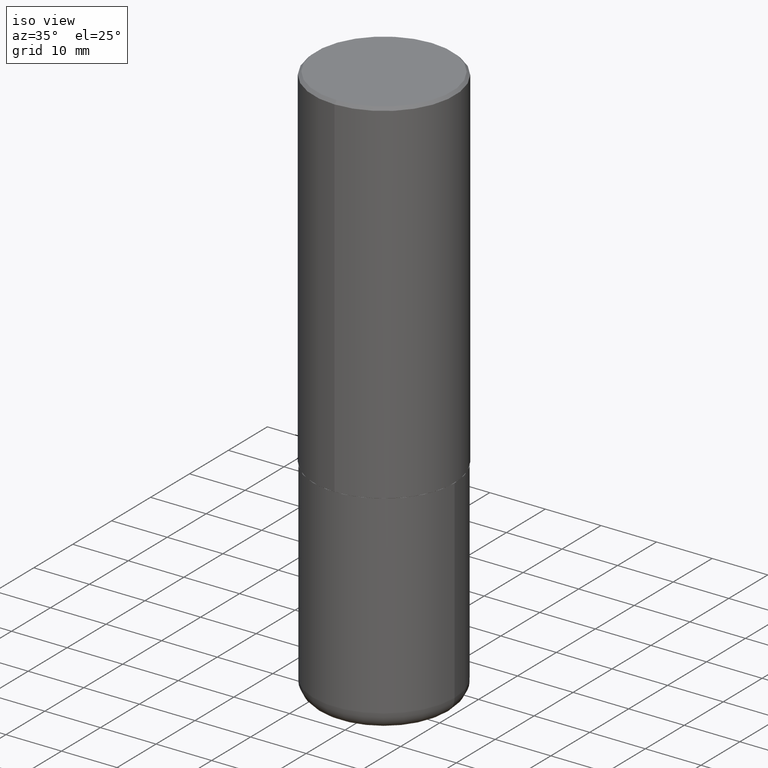
[diagram: clean part render]
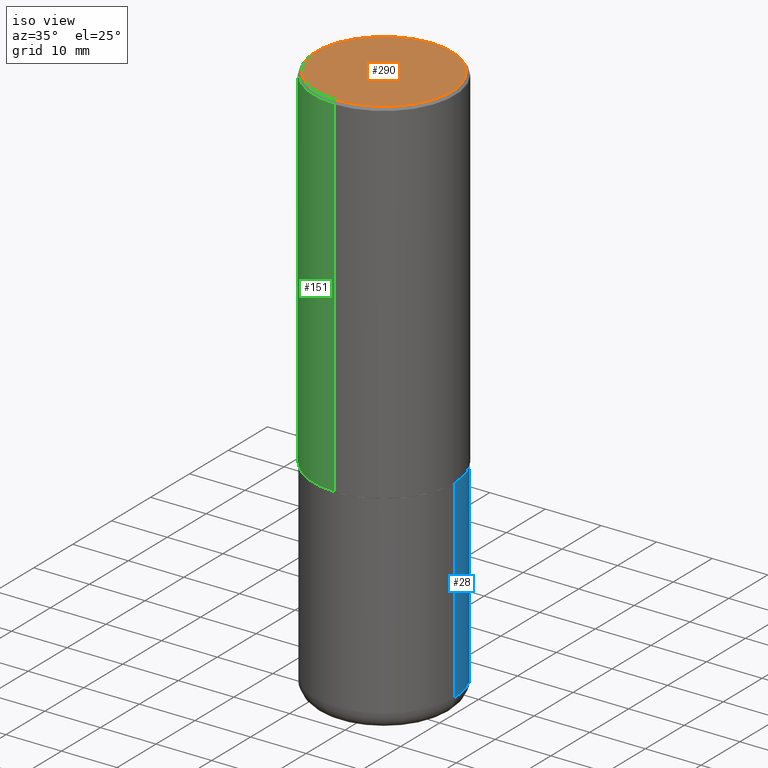
[diagram: same view with three faces highlighted in distinct colors, each labeled with its STEP entity id]
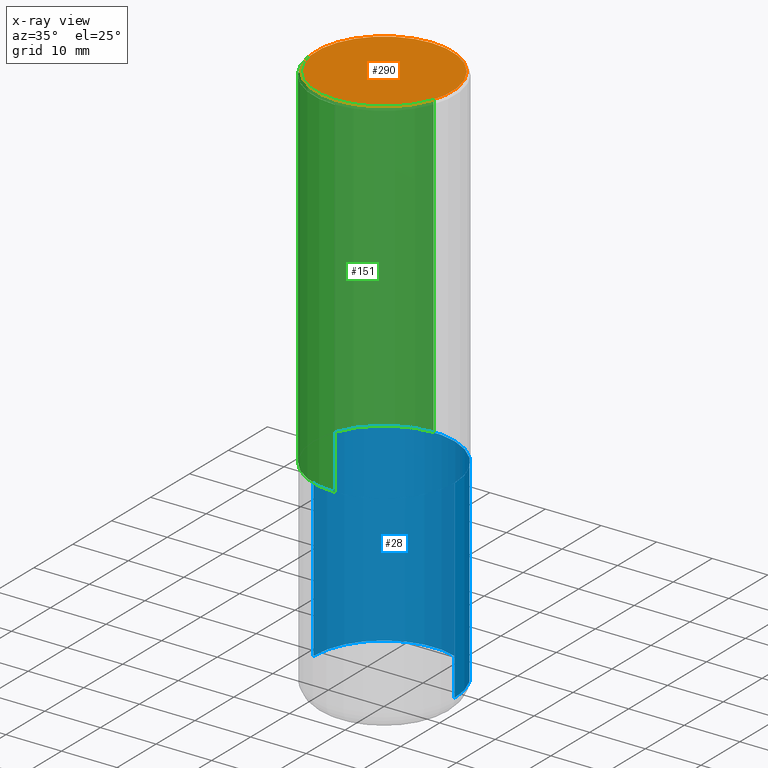
[diagram: x-ray of the same camera — body ghosted, the three highlighted faces saturated]
A machine part, iso view with three faces highlighted in distinct colors.
The next image is the same camera in x-ray (body ghosted, the three faces saturated) — at least one of them is partly hidden behind the body in this view.
Their STEP definitions:

[orange] entity #290 — the highlighted planar face has unit normal (0, -0, -1).
#5 = EDGE_CURVE ( 'NONE', #345, #21, #34, .T. ) ;
#7 = ORIENTED_EDGE ( 'NONE', *, *, #5, .T. ) ;
#11 = AXIS2_PLACEMENT_3D ( 'NONE', #68, #198, #322 ) ;
#21 = VERTEX_POINT ( 'NONE', #67 ) ;
#34 = CIRCLE ( 'NONE', #356, 0.4800000000000000933 ) ;
#67 = CARTESIAN_POINT ( 'NONE',  ( -3.361644018908050055E-15, -0.4800000000000000933, 1.544857821031407057E-15 ) ) ;
#68 = CARTESIAN_POINT ( 'NONE',  ( 3.219185358931801043E-45, -4.599624345227544074E-31, -1.316885544032078073E-16 ) ) ;
#128 = DIRECTION ( 'NONE',  ( 6.982962677686265922E-15, 1.000000000000000000, -3.492804948822114482E-15 ) ) ;
#167 = FACE_OUTER_BOUND ( 'NONE', #346, .T. ) ;
#180 = PLANE ( 'NONE',  #372 ) ;
#198 = DIRECTION ( 'NONE',  ( -2.444544534276841438E-29, 3.492804948822114088E-15, 1.000000000000000000 ) ) ;
#202 = DIRECTION ( 'NONE',  ( -6.982962677686265922E-15, -1.000000000000000000, 3.492804948822113694E-15 ) ) ;
#204 = CARTESIAN_POINT ( 'NONE',  ( 3.219185358931801043E-45, -4.599624345227544074E-31, -1.316885544032078073E-16 ) ) ;
#255 = ORIENTED_EDGE ( 'NONE', *, *, #373, .T. ) ;
#290 = ADVANCED_FACE ( 'NONE', ( #167 ), #180, .F. ) ;
#299 = DIRECTION ( 'NONE',  ( 2.444544534276840877E-29, -3.492804948822114482E-15, -1.000000000000000000 ) ) ;
#322 = DIRECTION ( 'NONE',  ( -6.982962677686265922E-15, -1.000000000000000000, 3.492804948822113694E-15 ) ) ;
#345 = VERTEX_POINT ( 'NONE', #391 ) ;
#346 = EDGE_LOOP ( 'NONE', ( #7, #255 ) ) ;
#356 = AXIS2_PLACEMENT_3D ( 'NONE', #204, #361, #202 ) ;
#361 = DIRECTION ( 'NONE',  ( -2.444544534276841438E-29, 3.492804948822114088E-15, 1.000000000000000000 ) ) ;
#372 = AXIS2_PLACEMENT_3D ( 'NONE', #392, #299, #128 ) ;
#373 = EDGE_CURVE ( 'NONE', #21, #345, #385, .T. ) ;
#385 = CIRCLE ( 'NONE', #11, 0.4800000000000000933 ) ;
#391 = CARTESIAN_POINT ( 'NONE',  ( 3.421651712066271240E-15, 0.4800000000000000933, -1.808234929837822918E-15 ) ) ;
#392 = CARTESIAN_POINT ( 'NONE',  ( 3.351822085289408337E-15, 0.4800000000000000933, -1.742390652636218903E-15 ) ) ;

[blue] entity #28 — the highlighted cylindrical surface (partial cylindrical patch) has radius 12.7 mm, axis along (-0, 0, 1).
#16 = ORIENTED_EDGE ( 'NONE', *, *, #370, .T. ) ;
#28 = ADVANCED_FACE ( 'NONE', ( #172 ), #289, .T. ) ;
#38 = CARTESIAN_POINT ( 'NONE',  ( -0.5000000000000000000, 3.552713678800500929E-15, -2.459467545127452891E-29 ) ) ;
#55 = LINE ( 'NONE', #38, #384 ) ;
#66 = CARTESIAN_POINT ( 'NONE',  ( 0.5000000000000000000, -1.702097152686032086E-14, -3.875000000000000000 ) ) ;
#73 = VECTOR ( 'NONE', #369, 39.37007874015748143 ) ;
#82 = DIRECTION ( 'NONE',  ( -2.445468806185136877E-29, 3.491481338843145188E-15, 1.000000000000000000 ) ) ;
#87 = AXIS2_PLACEMENT_3D ( 'NONE', #235, #358, #362 ) ;
#99 = AXIS2_PLACEMENT_3D ( 'NONE', #418, #135, #327 ) ;
#102 = CARTESIAN_POINT ( 'NONE',  ( 6.113672015462842613E-29, -8.728703347107864943E-15, -2.500000000000000000 ) ) ;
#107 = EDGE_CURVE ( 'NONE', #251, #401, #55, .T. ) ;
#121 = ORIENTED_EDGE ( 'NONE', *, *, #107, .T. ) ;
#135 = DIRECTION ( 'NONE',  ( -2.445468806185136597E-29, 3.491481338843145583E-15, 1.000000000000000000 ) ) ;
#142 = LINE ( 'NONE', #270, #73 ) ;
#144 = CARTESIAN_POINT ( 'NONE',  ( -0.5000000000000000000, -7.576383088762025295E-15, -2.500000000000000000 ) ) ;
#159 = EDGE_CURVE ( 'NONE', #166, #401, #257, .T. ) ;
#165 = VERTEX_POINT ( 'NONE', #66 ) ;
#166 = VERTEX_POINT ( 'NONE', #197 ) ;
#168 = DIRECTION ( 'NONE',  ( -2.445468806185136597E-29, 3.491481338843145583E-15, 1.000000000000000000 ) ) ;
#170 = DIRECTION ( 'NONE',  ( 1.000000000000000000, -6.982962677686269077E-15, 0.000000000000000000 ) ) ;
#172 = FACE_OUTER_BOUND ( 'NONE', #350, .T. ) ;
#186 = EDGE_CURVE ( 'NONE', #165, #166, #142, .T. ) ;
#193 = ORIENTED_EDGE ( 'NONE', *, *, #159, .F. ) ;
#197 = CARTESIAN_POINT ( 'NONE',  ( 0.5000000000000000000, -1.222018468595099830E-14, -2.500000000000000000 ) ) ;
#235 = CARTESIAN_POINT ( 'NONE',  ( 9.476191623967404313E-29, -1.352949018801718908E-14, -3.875000000000000000 ) ) ;
#247 = AXIS2_PLACEMENT_3D ( 'NONE', #102, #168, #170 ) ;
#251 = VERTEX_POINT ( 'NONE', #333 ) ;
#257 = CIRCLE ( 'NONE', #247, 0.5000000000000000000 ) ;
#270 = CARTESIAN_POINT ( 'NONE',  ( 0.5000000000000000000, -3.491481338843133355E-15, 2.438088387897967896E-29 ) ) ;
#289 = CYLINDRICAL_SURFACE ( 'NONE', #99, 0.5000000000000000000 ) ;
#312 = ORIENTED_EDGE ( 'NONE', *, *, #186, .F. ) ;
#327 = DIRECTION ( 'NONE',  ( 1.000000000000000000, -6.982962677686266711E-15, 4.876176775795935793E-29 ) ) ;
#333 = CARTESIAN_POINT ( 'NONE',  ( -0.5000000000000000000, -9.976776509216686576E-15, -3.875000000000000000 ) ) ;
#350 = EDGE_LOOP ( 'NONE', ( #16, #121, #193, #312 ) ) ;
#358 = DIRECTION ( 'NONE',  ( -2.445468806185136597E-29, 3.491481338843145583E-15, 1.000000000000000000 ) ) ;
#362 = DIRECTION ( 'NONE',  ( 1.000000000000000000, -6.982962677686266711E-15, 0.000000000000000000 ) ) ;
#369 = DIRECTION ( 'NONE',  ( -2.445468806185136877E-29, 3.491481338843145188E-15, 1.000000000000000000 ) ) ;
#370 = EDGE_CURVE ( 'NONE', #165, #251, #395, .T. ) ;
#384 = VECTOR ( 'NONE', #82, 39.37007874015748143 ) ;
#395 = CIRCLE ( 'NONE', #87, 0.5000000000000000000 ) ;
#401 = VERTEX_POINT ( 'NONE', #144 ) ;
#418 = CARTESIAN_POINT ( 'NONE',  ( 0.000000000000000000, 0.000000000000000000, 0.000000000000000000 ) ) ;

[green] entity #151 — the highlighted cylindrical surface (partial cylindrical patch) has radius 12.7 mm, axis along (-0, 0, 1).
#2 = CARTESIAN_POINT ( 'NONE',  ( -3.491481338843073796E-15, -0.5000000000000089928, -2.498999999999998778 ) ) ;
#6 = DIRECTION ( 'NONE',  ( -2.444544534276841438E-29, 3.492804948822114088E-15, 1.000000000000000000 ) ) ;
#14 = CARTESIAN_POINT ( 'NONE',  ( -3.491481338843133750E-15, -0.5000000000000001110, 1.746402474411057438E-15 ) ) ;
#15 = VERTEX_POINT ( 'NONE', #231 ) ;
#19 = ORIENTED_EDGE ( 'NONE', *, *, #64, .T. ) ;
#23 = DIRECTION ( 'NONE',  ( -6.982962677686265922E-15, -1.000000000000000000, 3.492804948822114088E-15 ) ) ;
#42 = AXIS2_PLACEMENT_3D ( 'NONE', #187, #306, #397 ) ;
#53 = ORIENTED_EDGE ( 'NONE', *, *, #70, .T. ) ;
#64 = EDGE_CURVE ( 'NONE', #15, #308, #229, .T. ) ;
#70 = EDGE_CURVE ( 'NONE', #308, #354, #402, .T. ) ;
#74 = DIRECTION ( 'NONE',  ( -6.982962677686265922E-15, -1.000000000000000000, 3.491643216902136408E-15 ) ) ;
#112 = AXIS2_PLACEMENT_3D ( 'NONE', #393, #6, #74 ) ;
#118 = DIRECTION ( 'NONE',  ( -2.444544534276841158E-29, 3.492804948822114482E-15, 1.000000000000000000 ) ) ;
#139 = CARTESIAN_POINT ( 'NONE',  ( 3.552713678800501718E-15, 0.5000000000000001110, -1.746402474411057438E-15 ) ) ;
#151 = ADVANCED_FACE ( 'NONE', ( #273 ), #311, .T. ) ;
#154 = DIRECTION ( 'NONE',  ( -2.444544534276841438E-29, 3.492804948822114088E-15, 1.000000000000000000 ) ) ;
#187 = CARTESIAN_POINT ( 'NONE',  ( 6.108916791157827585E-29, -8.728519567106463881E-15, -2.499000000000000110 ) ) ;
#196 = DIRECTION ( 'NONE',  ( -2.444544534276841158E-29, 3.492804948822114482E-15, 1.000000000000000000 ) ) ;
#206 = EDGE_CURVE ( 'NONE', #256, #354, #230, .T. ) ;
#208 = CARTESIAN_POINT ( 'NONE',  ( 3.491481338843133355E-15, 0.4999999999999999445, -0.02000000000000185310 ) ) ;
#229 = CIRCLE ( 'NONE', #42, 0.5000000000000002220 ) ;
#230 = CIRCLE ( 'NONE', #112, 0.5000000000000000000 ) ;
#231 = CARTESIAN_POINT ( 'NONE',  ( 3.552713678800533273E-15, 0.4999999999999916178, -2.499000000000001886 ) ) ;
#233 = LINE ( 'NONE', #139, #390 ) ;
#256 = VERTEX_POINT ( 'NONE', #208 ) ;
#269 = CARTESIAN_POINT ( 'NONE',  ( -3.430248998885764992E-15, -0.5000000000000001110, -0.01999999999999835937 ) ) ;
#273 = FACE_OUTER_BOUND ( 'NONE', #371, .T. ) ;
#287 = AXIS2_PLACEMENT_3D ( 'NONE', #403, #154, #23 ) ;
#306 = DIRECTION ( 'NONE',  ( -2.444544534276841438E-29, 3.492804948822114088E-15, 1.000000000000000000 ) ) ;
#308 = VERTEX_POINT ( 'NONE', #2 ) ;
#311 = CYLINDRICAL_SURFACE ( 'NONE', #287, 0.5000000000000001110 ) ;
#324 = EDGE_CURVE ( 'NONE', #15, #256, #233, .T. ) ;
#349 = VECTOR ( 'NONE', #118, 39.37007874015748143 ) ;
#354 = VERTEX_POINT ( 'NONE', #269 ) ;
#371 = EDGE_LOOP ( 'NONE', ( #412, #19, #53, #375 ) ) ;
#375 = ORIENTED_EDGE ( 'NONE', *, *, #206, .F. ) ;
#390 = VECTOR ( 'NONE', #196, 39.37007874015748143 ) ;
#393 = CARTESIAN_POINT ( 'NONE',  ( 4.889089068553708695E-31, -6.985609897644266091E-17, -0.02000000000000010797 ) ) ;
#397 = DIRECTION ( 'NONE',  ( -6.982962677686266711E-15, -1.000000000000000000, 3.278217592397114284E-15 ) ) ;
#402 = LINE ( 'NONE', #14, #349 ) ;
#403 = CARTESIAN_POINT ( 'NONE',  ( 0.000000000000000000, 0.000000000000000000, 0.000000000000000000 ) ) ;
#412 = ORIENTED_EDGE ( 'NONE', *, *, #324, .F. ) ;